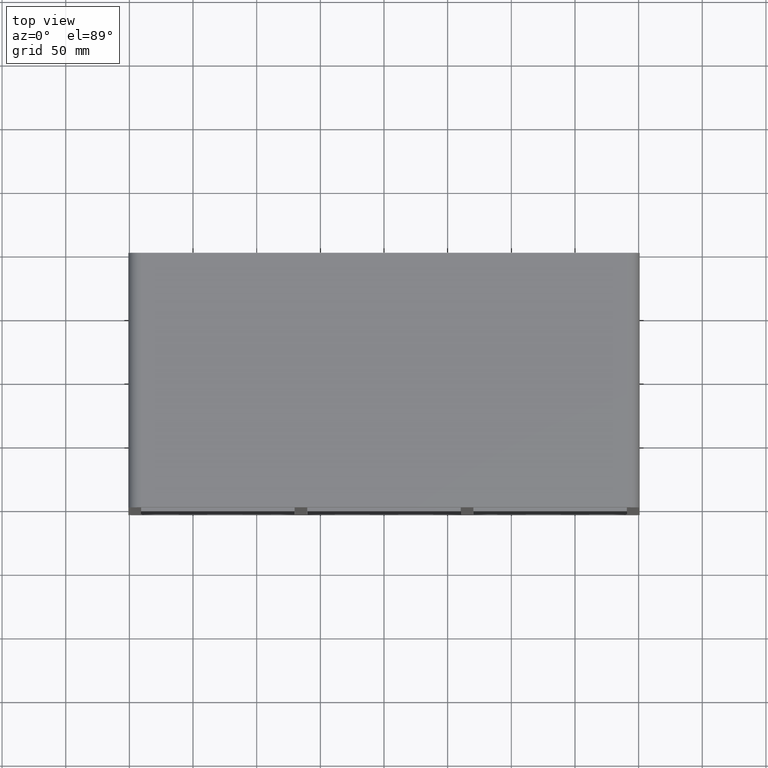
[diagram: clean part render]
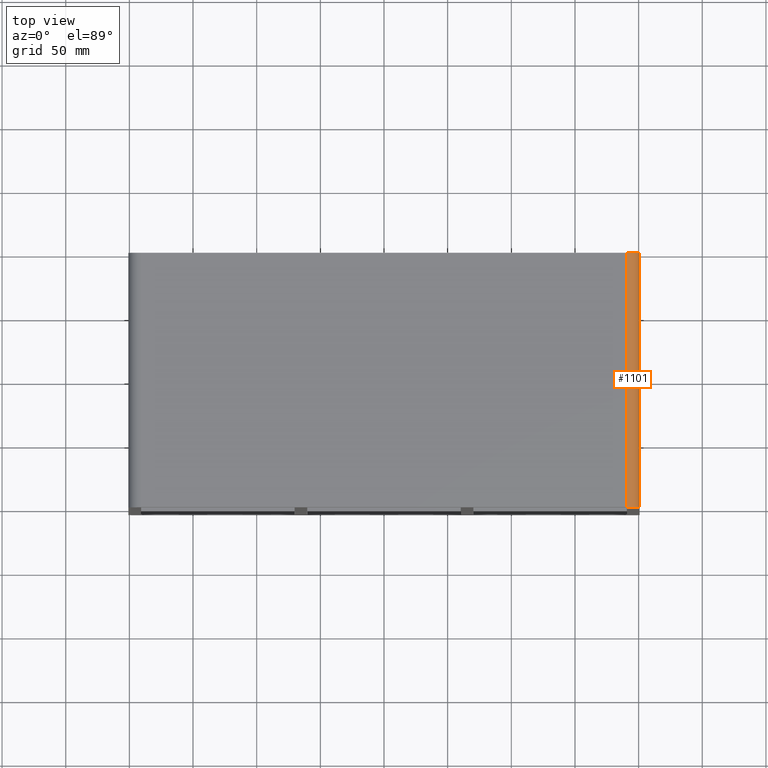
[diagram: same view with one face highlighted and labeled with its STEP entity id]
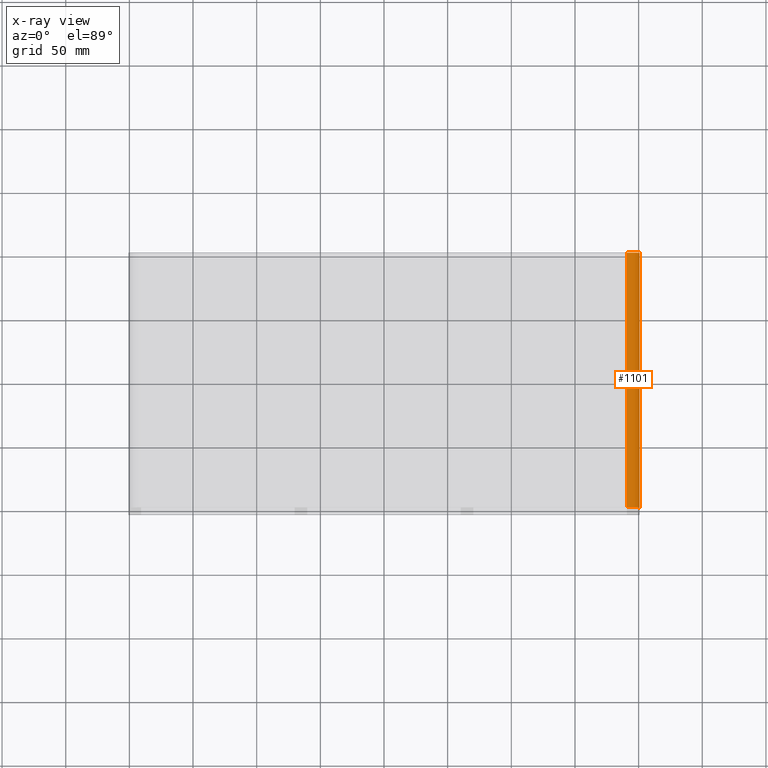
[diagram: x-ray of the same camera — body ghosted, the highlighted face saturated]
A machine part, top view. The second image highlights one B-rep face of the part: STEP entity #1101.
The next image is the same camera in x-ray: the body ghosted, the highlighted face saturated — about 0% of this face is hidden behind the body in this view.
In plain terms, the highlighted cylindrical surface (edge-blend (fillet) strip) has radius 10 mm, axis along (0, -1, 0).
Its self-contained STEP definition (entity closure, byte-faithful):
#323=CARTESIAN_POINT('',(200.75000000000003,-3.0,169.50000000000003));
#324=VERTEX_POINT('',#323);
#331=CARTESIAN_POINT('',(190.75000000000003,-3.0,179.50000000000003));
#332=VERTEX_POINT('',#331);
#333=CARTESIAN_POINT('',(190.75000000000003,-3.0,169.50000000000003));
#334=DIRECTION('',(0.0,1.0,0.0));
#335=DIRECTION('',(0.707106781186547,0.0,0.707106781186547));
#336=AXIS2_PLACEMENT_3D('',#333,#334,#335);
#337=CIRCLE('',#336,9.999999999999998);
#338=EDGE_CURVE('',#332,#324,#337,.T.);
#817=CARTESIAN_POINT('',(190.75000000000003,197.0,179.50000000000003));
#818=VERTEX_POINT('',#817);
#825=CARTESIAN_POINT('',(200.75000000000003,197.0,169.50000000000003));
#826=VERTEX_POINT('',#825);
#827=CARTESIAN_POINT('',(190.75000000000003,197.0,169.50000000000003));
#828=DIRECTION('',(0.0,-1.0,0.0));
#829=DIRECTION('',(0.707106781186547,0.0,0.707106781186547));
#830=AXIS2_PLACEMENT_3D('',#827,#828,#829);
#831=CIRCLE('',#830,9.999999999999998);
#832=EDGE_CURVE('',#826,#818,#831,.T.);
#1080=CARTESIAN_POINT('',(190.75000000000003,0.0,169.50000000000003));
#1081=DIRECTION('',(0.0,-1.0,0.0));
#1082=DIRECTION('',(0.707106781186547,0.0,0.707106781186547));
#1083=AXIS2_PLACEMENT_3D('',#1080,#1081,#1082);
#1084=CYLINDRICAL_SURFACE('',#1083,10.0);
#1085=ORIENTED_EDGE('',*,*,#338,.T.);
#1086=CARTESIAN_POINT('',(200.75000000000003,-3.0,169.50000000000003));
#1087=DIRECTION('',(0.0,1.0,0.0));
#1088=VECTOR('',#1087,200.0);
#1089=LINE('',#1086,#1088);
#1090=EDGE_CURVE('',#324,#826,#1089,.T.);
#1091=ORIENTED_EDGE('',*,*,#1090,.T.);
#1092=ORIENTED_EDGE('',*,*,#832,.T.);
#1093=CARTESIAN_POINT('',(190.75000000000003,197.0,179.50000000000003));
#1094=DIRECTION('',(0.0,-1.0,0.0));
#1095=VECTOR('',#1094,200.0);
#1096=LINE('',#1093,#1095);
#1097=EDGE_CURVE('',#818,#332,#1096,.T.);
#1098=ORIENTED_EDGE('',*,*,#1097,.T.);
#1099=EDGE_LOOP('',(#1085,#1091,#1092,#1098));
#1100=FACE_OUTER_BOUND('',#1099,.T.);
#1101=ADVANCED_FACE('',(#1100),#1084,.T.);